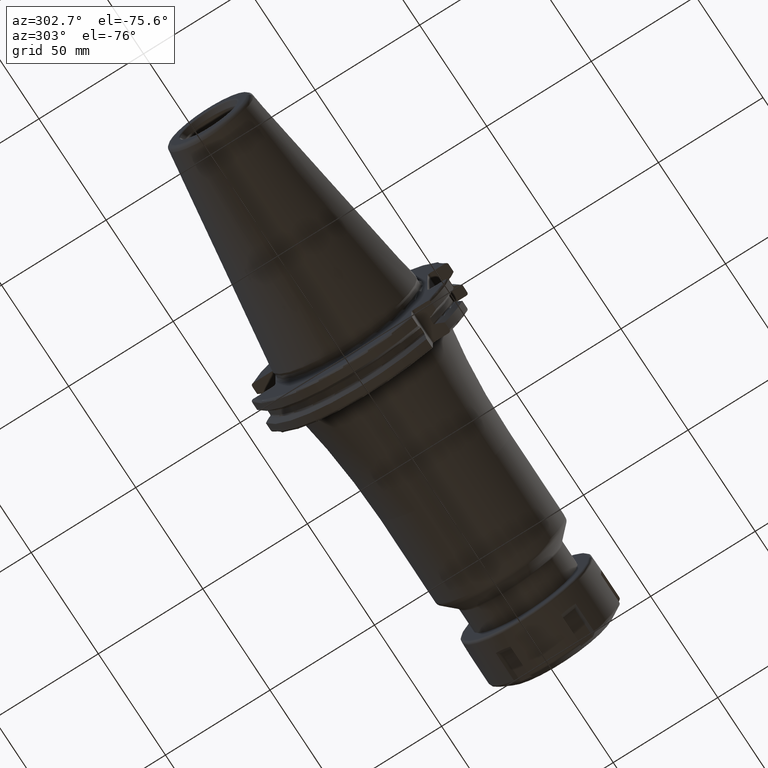
[diagram: clean part render]
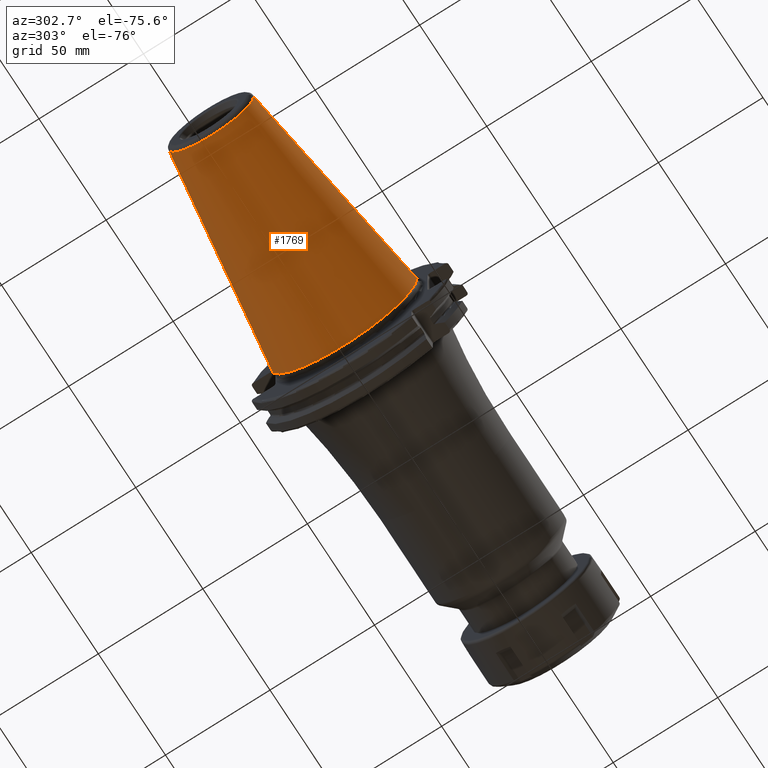
[diagram: same view with one face highlighted and labeled with its STEP entity id]
A machine part, auxiliary view. The second image highlights one B-rep face of the part: STEP entity #1769.
In plain terms, the highlighted conical surface has half-angle 8.298 deg.
Its self-contained STEP definition (entity closure, byte-faithful):
#32=CARTESIAN_POINT('',(-9.967471700563E1,0.E0,0.E0));
#33=DIRECTION('',(-1.E0,0.E0,0.E0));
#34=DIRECTION('',(0.E0,1.E0,0.E0));
#35=AXIS2_PLACEMENT_3D('',#32,#33,#34);
#47=DIRECTION('',(-9.895312636440E-1,-1.443186691705E-1,0.E0));
#48=VECTOR('',#47,1.002343617797E2);
#49=CARTESIAN_POINT('',(-4.896823332305E-1,3.485358204157E1,0.E0));
#50=LINE('',#49,#48);
#51=DIRECTION('',(-9.895312636440E-1,1.443186691705E-1,0.E0));
#52=VECTOR('',#51,1.002343617797E2);
#53=CARTESIAN_POINT('',(-4.896823332305E-1,-3.485358204157E1,0.E0));
#54=LINE('',#53,#52);
#55=CARTESIAN_POINT('',(-4.896823332305E-1,0.E0,0.E0));
#56=DIRECTION('',(-1.E0,0.E0,0.E0));
#57=DIRECTION('',(0.E0,1.E0,0.E0));
#58=AXIS2_PLACEMENT_3D('',#55,#56,#57);
#1412=CARTESIAN_POINT('',(-9.967471700563E1,2.038789234437E1,0.E0));
#1414=VERTEX_POINT('',#1412);
#1416=CARTESIAN_POINT('',(-9.967471700563E1,-2.038789234437E1,0.E0));
#1418=VERTEX_POINT('',#1416);
#1480=CARTESIAN_POINT('',(-4.896823332305E-1,3.485358204157E1,0.E0));
#1481=VERTEX_POINT('',#1480);
#1482=CARTESIAN_POINT('',(-4.896823332305E-1,-3.485358204157E1,0.E0));
#1483=VERTEX_POINT('',#1482);
#1757=CARTESIAN_POINT('',(-5.008219966943E1,0.E0,0.E0));
#1758=DIRECTION('',(1.E0,0.E0,0.E0));
#1759=DIRECTION('',(0.E0,-1.E0,0.E0));
#1760=AXIS2_PLACEMENT_3D('',#1757,#1758,#1759);
#1761=CONICAL_SURFACE('',#1760,2.762073719297E1,8.297826828206E0);
#1762=ORIENTED_EDGE('',*,*,#1747,.T.);
#1763=ORIENTED_EDGE('',*,*,#1724,.T.);
#1764=ORIENTED_EDGE('',*,*,#1751,.F.);
#1766=ORIENTED_EDGE('',*,*,#1765,.F.);
#1767=EDGE_LOOP('',(#1762,#1763,#1764,#1766));
#1768=FACE_OUTER_BOUND('',#1767,.F.);
#1769=ADVANCED_FACE('',(#1768),#1761,.T.);
#36=CIRCLE('',#35,2.038789234437E1);
#59=CIRCLE('',#58,3.485358204157E1);
#1724=EDGE_CURVE('',#1414,#1418,#36,.T.);
#1747=EDGE_CURVE('',#1481,#1414,#50,.T.);
#1751=EDGE_CURVE('',#1483,#1418,#54,.T.);
#1765=EDGE_CURVE('',#1481,#1483,#59,.T.);